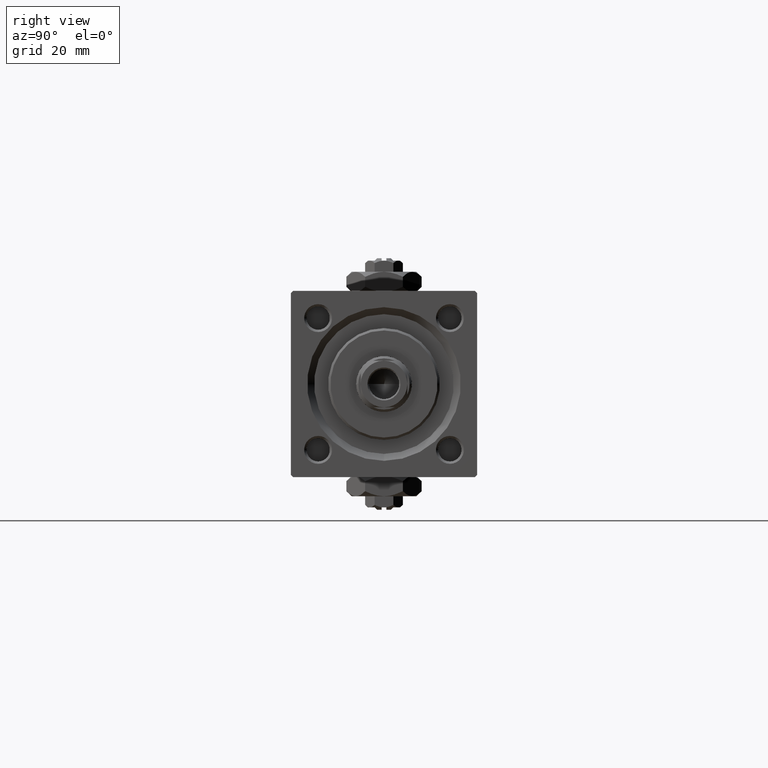
[diagram: clean part render]
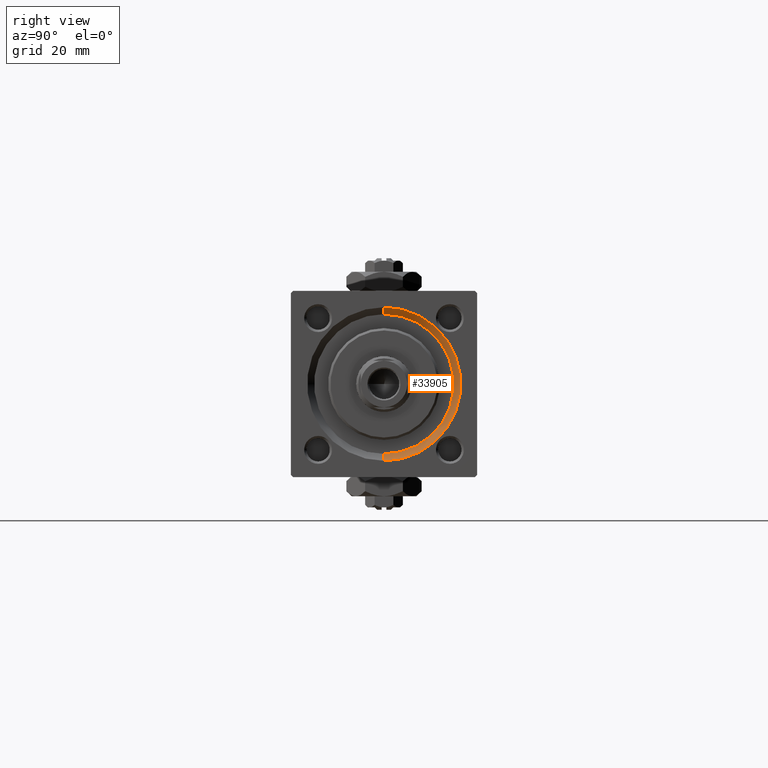
[diagram: same view with one face highlighted and labeled with its STEP entity id]
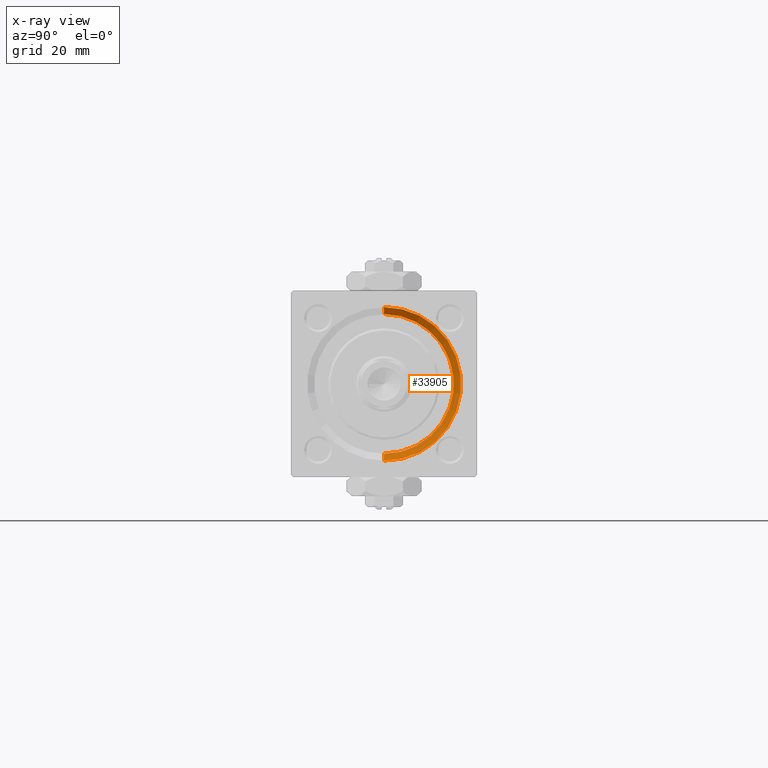
[diagram: x-ray of the same camera — body ghosted, the highlighted face saturated]
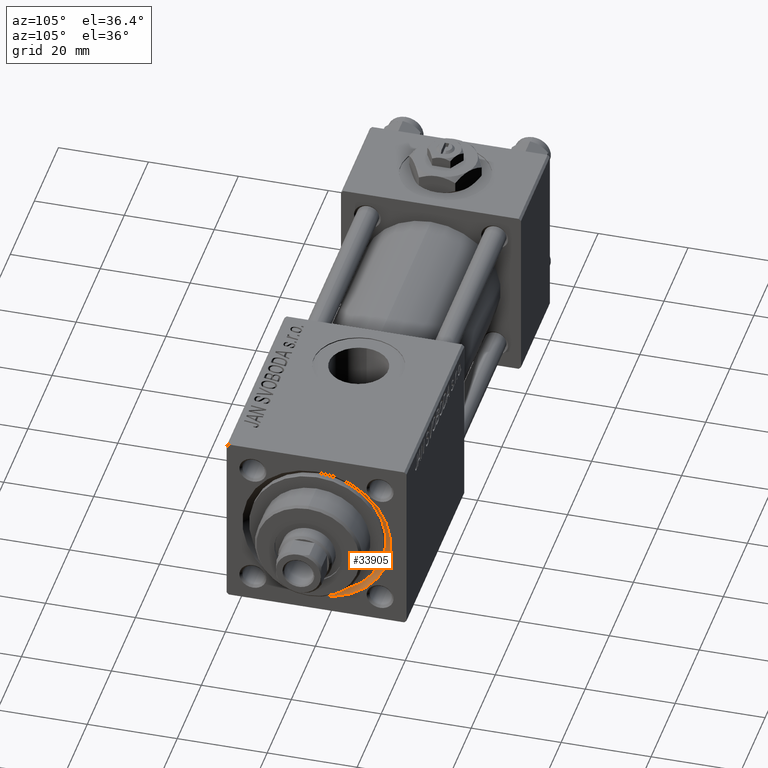
[diagram: same view with one face highlighted and labeled with its STEP entity id]
A machine part, right view. The second image highlights one B-rep face of the part: STEP entity #33905.
The next image is the same camera in x-ray: the body ghosted, the highlighted face saturated — about 0% of this face is hidden behind the body in this view.
A second angle (auxiliary view) of the same face is appended — the face is thin or edge-on in the first view.
In plain terms, the highlighted conical surface has half-angle 45 deg.
Its self-contained STEP definition (entity closure, byte-faithful):
#873 = DIRECTION ( 'NONE',  ( 1.000000000000000000, 0.000000000000000000, 0.000000000000000000 ) ) ;
#1853 = AXIS2_PLACEMENT_3D ( 'NONE', #22556, #50474, #15598 ) ;
#2692 = LINE ( 'NONE', #10880, #20424 ) ;
#3295 = CARTESIAN_POINT ( 'NONE',  ( 119.0000000000000142, 2.020667218593134678E-15, 16.50000000000001421 ) ) ;
#8665 = CIRCLE ( 'NONE', #17937, 15.00000000000000000 ) ;
#9260 = EDGE_CURVE ( 'NONE', #50599, #20382, #10300, .T. ) ;
#10300 = CIRCLE ( 'NONE', #1853, 16.50000000000001421 ) ;
#10415 = EDGE_CURVE ( 'NONE', #27919, #50599, #2692, .T. ) ;
#10880 = CARTESIAN_POINT ( 'NONE',  ( 117.5000000000000000, 1.836970198721029589E-15, 15.00000000000000000 ) ) ;
#11840 = EDGE_CURVE ( 'NONE', #20693, #27919, #8665, .T. ) ;
#12922 = CARTESIAN_POINT ( 'NONE',  ( 117.5000000000000000, 0.000000000000000000, -15.00000000000000000 ) ) ;
#15030 = DIRECTION ( 'NONE',  ( 1.000000000000000000, 0.000000000000000000, 0.000000000000000000 ) ) ;
#15092 = DIRECTION ( 'NONE',  ( 0.7071067811865474617, 8.659560562354932858E-17, 0.7071067811865474617 ) ) ;
#15598 = DIRECTION ( 'NONE',  ( 0.000000000000000000, 0.000000000000000000, 1.000000000000000000 ) ) ;
#17937 = AXIS2_PLACEMENT_3D ( 'NONE', #24639, #873, #29349 ) ;
#18209 = DIRECTION ( 'NONE',  ( 0.000000000000000000, 0.000000000000000000, -1.000000000000000000 ) ) ;
#19293 = ORIENTED_EDGE ( 'NONE', *, *, #20828, .T. ) ;
#20382 = VERTEX_POINT ( 'NONE', #25910 ) ;
#20424 = VECTOR ( 'NONE', #15092, 1000.000000000000114 ) ;
#20693 = VERTEX_POINT ( 'NONE', #12922 ) ;
#20828 = EDGE_CURVE ( 'NONE', #20693, #20382, #39258, .T. ) ;
#21448 = CONICAL_SURFACE ( 'NONE', #23984, 15.00000000000000000, 0.7853981633974482790 ) ;
#22556 = CARTESIAN_POINT ( 'NONE',  ( 119.0000000000000142, 0.000000000000000000, 0.000000000000000000 ) ) ;
#23984 = AXIS2_PLACEMENT_3D ( 'NONE', #38237, #15030, #18209 ) ;
#24639 = CARTESIAN_POINT ( 'NONE',  ( 117.5000000000000000, 0.000000000000000000, 0.000000000000000000 ) ) ;
#25910 = CARTESIAN_POINT ( 'NONE',  ( 119.0000000000000142, 0.000000000000000000, -16.50000000000001421 ) ) ;
#27919 = VERTEX_POINT ( 'NONE', #47162 ) ;
#29349 = DIRECTION ( 'NONE',  ( 0.000000000000000000, 0.000000000000000000, 1.000000000000000000 ) ) ;
#33905 = ADVANCED_FACE ( 'NONE', ( #46143 ), #21448, .F. ) ;
#35828 = CARTESIAN_POINT ( 'NONE',  ( 117.5000000000000000, 0.000000000000000000, -15.00000000000000000 ) ) ;
#38237 = CARTESIAN_POINT ( 'NONE',  ( 117.5000000000000000, 0.000000000000000000, 0.000000000000000000 ) ) ;
#39258 = LINE ( 'NONE', #35828, #39622 ) ;
#39622 = VECTOR ( 'NONE', #43213, 1000.000000000000114 ) ;
#39881 = ORIENTED_EDGE ( 'NONE', *, *, #11840, .F. ) ;
#41764 = ORIENTED_EDGE ( 'NONE', *, *, #10415, .F. ) ;
#43045 = ORIENTED_EDGE ( 'NONE', *, *, #9260, .F. ) ;
#43213 = DIRECTION ( 'NONE',  ( 0.7071067811865474617, 0.000000000000000000, -0.7071067811865474617 ) ) ;
#46143 = FACE_OUTER_BOUND ( 'NONE', #51635, .T. ) ;
#47162 = CARTESIAN_POINT ( 'NONE',  ( 117.5000000000000000, 1.836970198721029589E-15, 15.00000000000000000 ) ) ;
#50474 = DIRECTION ( 'NONE',  ( -1.000000000000000000, -0.000000000000000000, -0.000000000000000000 ) ) ;
#50599 = VERTEX_POINT ( 'NONE', #3295 ) ;
#51635 = EDGE_LOOP ( 'NONE', ( #41764, #39881, #19293, #43045 ) ) ;